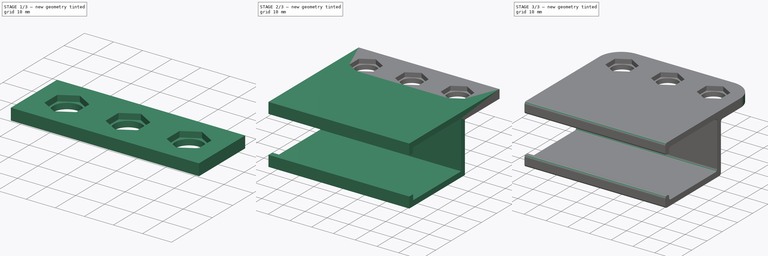
[diagram: build sequence overview — one tinted view per stage of 3, left to right]
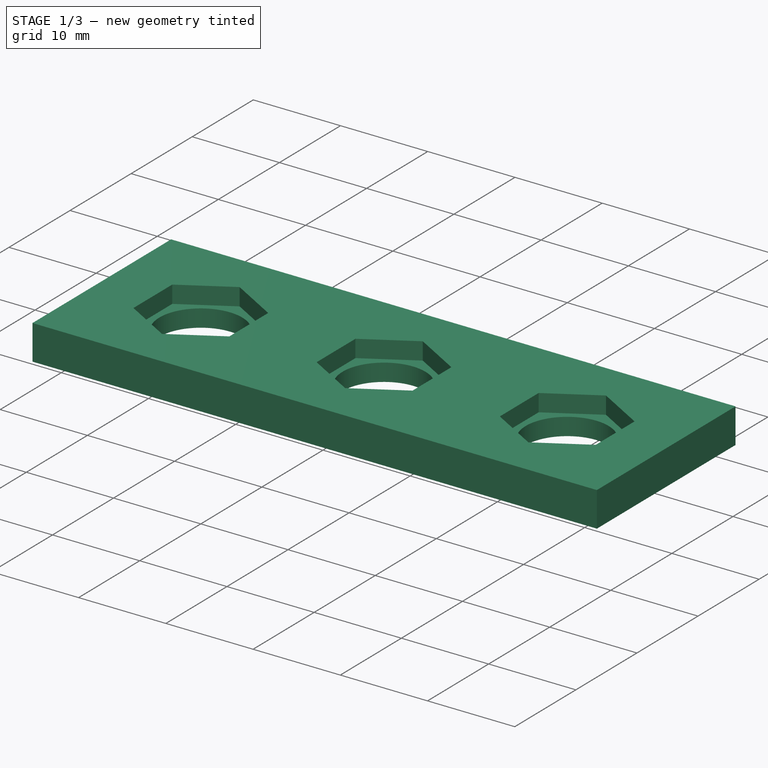
[diagram: stage 1 of 3 — iso view after this stage's code; geometry added in this stage tinted green]
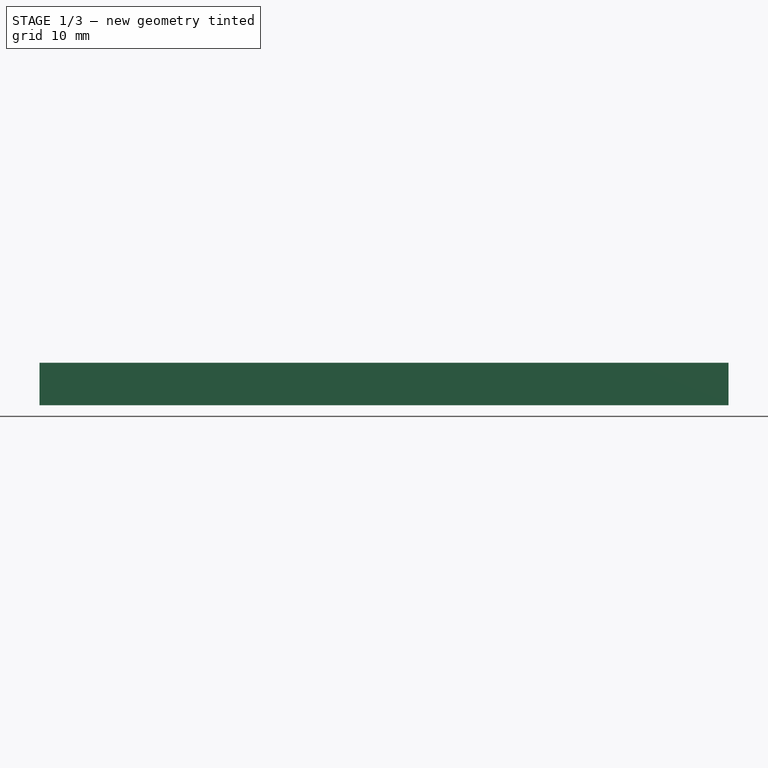
[diagram: stage 1 of 3 — front view after this stage's code; geometry added in this stage tinted green]
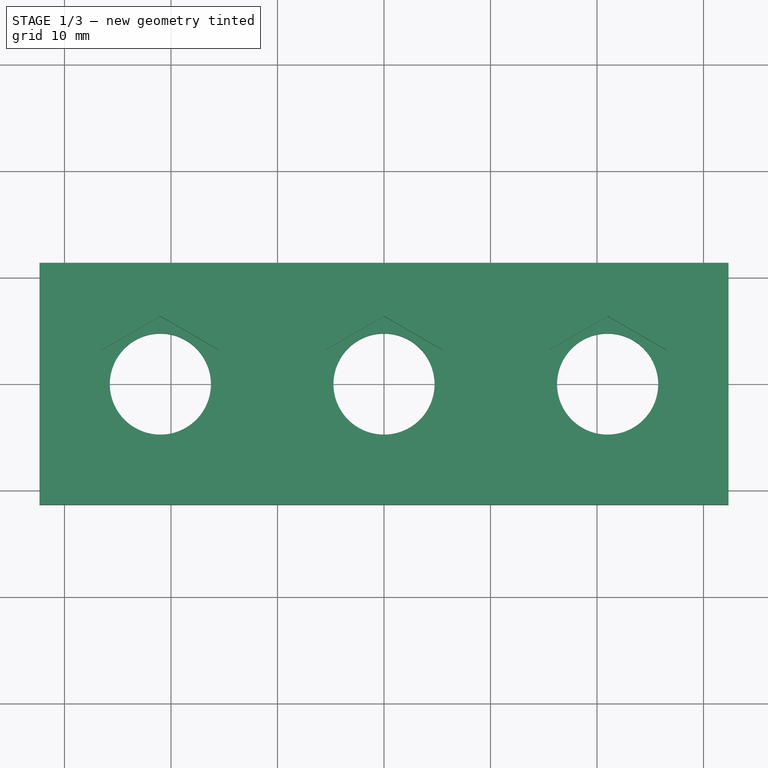
[diagram: stage 1 of 3 — top view after this stage's code; geometry added in this stage tinted green]
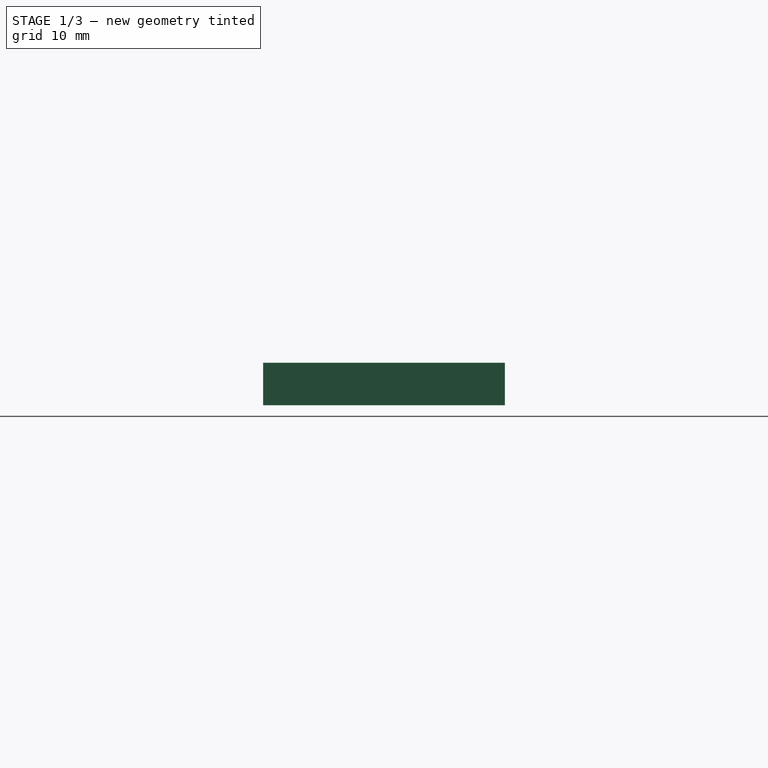
[diagram: stage 1 of 3 — right view after this stage's code; geometry added in this stage tinted green]
FCSTD DOCUMENT  (FreeCAD 1.0R39104 (Git))
Label: Composite Mount
License: All rights reserved
LicenseURL: http://en.wikipedia.org/wiki/All_rights_reserved
objects: Sketcher::SketchObject×3, PartDesign::Pad×3, PartDesign::Fillet×2, PartDesign::Body×1
note: 22 computed .brp shape members not serialized (recipe doc carries the construction recipe); baked Part::Feature solids carry a one-line shape summary decoded from their .brp

FEATURE [Sketcher::SketchObject] Sketch
  ArcFitTolerance = 1e-06
  AttachmentSupport = -> [XY_Plane]
  FullyConstrained = true
  MakeInternals = false
  MapMode = 5
  sketch-geometry (33):
    g0: LineSegment StartX=-32.3509 StartY=-11.3509 StartZ=0 EndX=32.3509 EndY=-11.3509 EndZ=0
    g1: LineSegment StartX=32.3509 StartY=-11.3509 StartZ=0 EndX=32.3509 EndY=11.3509 EndZ=0
    g2: LineSegment StartX=32.3509 StartY=11.3509 StartZ=0 EndX=-32.3509 EndY=11.3509 EndZ=0
    g3: LineSegment StartX=-32.3509 StartY=11.3509 StartZ=0 EndX=-32.3509 EndY=-11.3509 EndZ=0
    g4: GeomPoint [constr] X=0 Y=0 Z=0
    g5: LineSegment StartX=0 StartY=6.35085 StartZ=0 EndX=-5.5 EndY=3.17543 EndZ=0
    g6: LineSegment StartX=-5.5 StartY=3.17543 StartZ=0 EndX=-5.5 EndY=-3.17543 EndZ=0
    g7: LineSegment StartX=-5.5 StartY=-3.17543 StartZ=0 EndX=-9e-16 EndY=-6.35085 EndZ=0
    g8: LineSegment StartX=-9e-16 StartY=-6.35085 StartZ=0 EndX=5.5 EndY=-3.17543 EndZ=0
    g9: LineSegment StartX=5.5 StartY=-3.17543 StartZ=0 EndX=5.5 EndY=3.17543 EndZ=0
    g10: LineSegment StartX=5.5 StartY=3.17543 StartZ=0 EndX=0 EndY=6.35085 EndZ=0
    g11: Circle [constr] CenterX=0 CenterY=0 CenterZ=0 NormalX=0 NormalY=0 NormalZ=1 AngleXU=0 Radius=6.35085
    g12: LineSegment StartX=-21 StartY=6.35085 StartZ=0 EndX=-26.5 EndY=3.17543 EndZ=0
    g13: LineSegment StartX=-26.5 StartY=3.17543 StartZ=0 EndX=-26.5 EndY=-3.17543 EndZ=0
    g14: LineSegment StartX=-26.5 StartY=-3.17543 StartZ=0 EndX=-21 EndY=-6.35085 EndZ=0
    g15: LineSegment StartX=-21 StartY=-6.35085 StartZ=0 EndX=-15.5 EndY=-3.17543 EndZ=0
    g16: LineSegment StartX=-15.5 StartY=-3.17543 StartZ=0 EndX=-15.5 EndY=3.17543 EndZ=0
    g17: LineSegment StartX=-15.5 StartY=3.17543 StartZ=0 EndX=-21 EndY=6.35085 EndZ=0
    g18: Circle [constr] CenterX=-21 CenterY=0 CenterZ=0 NormalX=0 NormalY=0 NormalZ=1 AngleXU=0 Radius=6.35085
    g19: LineSegment StartX=21 StartY=6.35085 StartZ=0 EndX=15.5 EndY=3.17543 EndZ=0
    g20: LineSegment StartX=15.5 StartY=3.17543 StartZ=0 EndX=15.5 EndY=-3.17543 EndZ=0
    g21: LineSegment StartX=15.5 StartY=-3.17543 StartZ=0 EndX=21 EndY=-6.35085 EndZ=0
    g22: LineSegment StartX=21 StartY=-6.35085 StartZ=0 EndX=26.5 EndY=-3.17543 EndZ=0
    g23: LineSegment StartX=26.5 StartY=-3.17543 StartZ=0 EndX=26.5 EndY=3.17543 EndZ=0
    g24: LineSegment StartX=26.5 StartY=3.17543 StartZ=0 EndX=21 EndY=6.35085 EndZ=0
    g25: Circle [constr] CenterX=21 CenterY=0 CenterZ=0 NormalX=0 NormalY=0 NormalZ=1 AngleXU=0 Radius=6.35085
    g26: LineSegment [constr] StartX=-15.5 StartY=-3.17543 StartZ=0 EndX=-26.5 EndY=-3.17543 EndZ=0
    g27: LineSegment [constr] StartX=-5.5 StartY=-3.17543 StartZ=0 EndX=5.5 EndY=-3.17543 EndZ=0
    g28: LineSegment [constr] StartX=15.5 StartY=-3.17543 StartZ=0 EndX=26.5 EndY=-3.17543 EndZ=0
    g29: LineSegment [constr] StartX=-15.5 StartY=3.17543 StartZ=0 EndX=-5.5 EndY=3.17543 EndZ=0
    g30: LineSegment [constr] StartX=5.5 StartY=3.17543 StartZ=0 EndX=15.5 EndY=3.17543 EndZ=0
    g31: LineSegment [constr] StartX=27.3509 StartY=0 StartZ=0 EndX=32.3509 EndY=0 EndZ=0
    g32: LineSegment [constr] StartX=21 StartY=6.35085 StartZ=0 EndX=21 EndY=11.3509 EndZ=0
  constraints (80):
    c: Coincident(g0,g1)
    c: Coincident(g1,g2)
    c: Coincident(g2,g3)
    c: Coincident(g3,g0)
    c: Horizontal(g0)
    c: Horizontal(g2)
    c: Vertical(g1)
    c: Vertical(g3)
    c: Symmetric(g2,g0,g4)
    c: Coincident(g4,g-1)
    c: Coincident(g5,g6)
    c: Coincident(g6,g7)
    c: Coincident(g7,g8)
    c: Coincident(g8,g9)
    c: Coincident(g9,g10)
    c: Coincident(g10,g5)
    c: Equal(g5, g6-g10) x5
    c: PointOnObject(g5,g11)
    c: PointOnObject(g6,g11)
    c: PointOnObject(g7,g11)
    c: PointOnObject(g8,g11)
    c: PointOnObject(g9,g11)
    c: PointOnObject(g10,g11)
    c: Coincident(g11,g4)
    c: PointOnObject(g10,g-2)
    c: Coincident(g12,g13)
    c: Coincident(g13,g14)
    c: Coincident(g14,g15)
    c: Coincident(g15,g16)
    c: Coincident(g16,g17)
    c: Coincident(g17,g12)
    c: Equal(g12, g13-g17) x5
    c: PointOnObject(g12,g18)
    c: PointOnObject(g13,g18)
    c: PointOnObject(g14,g18)
    c: PointOnObject(g15,g18)
    c: PointOnObject(g16,g18)
    c: PointOnObject(g17,g18)
    c: PointOnObject(g18,g-1)
    c: Coincident(g19,g20)
    c: Coincident(g20,g21)
    c: Coincident(g21,g22)
    c: Coincident(g22,g23)
    c: Coincident(g23,g24)
    c: Coincident(g24,g19)
    c: Equal(g19, g20-g24) x5
    c: PointOnObject(g19,g25)
    c: PointOnObject(g20,g25)
    c: PointOnObject(g21,g25)
    c: PointOnObject(g22,g25)
    c: PointOnObject(g23,g25)
    c: PointOnObject(g24,g25)
    c: PointOnObject(g25,g-1)
    c: Coincident(g26,g15)
    c: Coincident(g26,g13)
    c: Horizontal(g26)
    c: Coincident(g27,g6)
    c: Coincident(g27,g8)
    c: Coincident(g28,g20)
    c: Coincident(g28,g22)
    c: Horizontal(g28)
    c: Coincident(g29,g16)
    c: Coincident(g29,g5)
    c: Coincident(g30,g9)
    c: Coincident(g30,g19)
    c: Horizontal(g30)
    c: Horizontal(g29)
    c: Distance(g29) = 10
    c: Equal(g29,g30)
    c: Distance(g26) = 11
    c: PointOnObject(g31,g25)
    c: PointOnObject(g31,g1)
    c: PointOnObject(g32,g25)
    c: PointOnObject(g32,g2)
    c: Vertical(g32)
    c: Horizontal(g31)
    c: Perpendicular(g25,g32)
    c: Perpendicular(g25,g31)
    c: Equal(g32,g31)
    c: Distance(g32) = 5
FEATURE [PartDesign::Pad] Pad
  Direction = (0,0,1)
  Length = 2
  Length2 = 10
  Profile = -> Sketch
  ReferenceAxis = -> Sketch [N_Axis]
  Refine = true
  Suppressed = false
  Type = 0
FEATURE [Sketcher::SketchObject] Sketch001
  ArcFitTolerance = 1e-06
  AttachmentSupport = -> [Pad]
  ExternalGeometry = -> [Pad]
  FullyConstrained = true
  MakeInternals = false
  MapMode = 5
  Placement = pos=(0,0,0) rot=(1,0,0;3.14159rad)
  sketch-geometry (7):
    g0: LineSegment StartX=-32.3509 StartY=11.3509 StartZ=0 EndX=-32.3509 EndY=-11.3509 EndZ=0
    g1: LineSegment StartX=-32.3509 StartY=-11.3509 StartZ=0 EndX=32.3509 EndY=-11.3509 EndZ=0
    g2: LineSegment StartX=32.3509 StartY=-11.3509 StartZ=0 EndX=32.3509 EndY=11.3509 EndZ=0
    g3: LineSegment StartX=32.3509 StartY=11.3509 StartZ=0 EndX=-32.3509 EndY=11.3509 EndZ=0
    g4: Circle CenterX=0 CenterY=0 CenterZ=0 NormalX=0 NormalY=0 NormalZ=1 AngleXU=0 Radius=4.75
    g5: Circle CenterX=21 CenterY=8e-16 CenterZ=0 NormalX=0 NormalY=0 NormalZ=1 AngleXU=0 Radius=4.75
    g6: Circle CenterX=-21 CenterY=-8e-15 CenterZ=0 NormalX=0 NormalY=0 NormalZ=1 AngleXU=0 Radius=4.75
  constraints (16):
    c: Coincident(g0,g1)
    c: Coincident(g1,g2)
    c: Coincident(g2,g3)
    c: Coincident(g3,g0)
    c: Vertical(g0)
    c: Vertical(g2)
    c: Horizontal(g1)
    c: Horizontal(g3)
    c: Coincident(g0,g-8)
    c: Coincident(g1,g-7)
    c: Coincident(g4,g-1)
    c: Symmetric(g-3,g-4,g6)
    c: Symmetric(g-5,g-6,g5)
    c: Equal(g4,g5)
    c: Equal(g5,g6)
    c: Diameter(g6) = 9.5
FEATURE [PartDesign::Pad] Pad001
  BaseFeature = -> Pad
  Direction = (0,0,-1)
  Length = 2
  Length2 = 10
  Profile = -> Sketch001
  ReferenceAxis = -> Sketch001 [N_Axis]
  Refine = true
  Suppressed = false
  Type = 0
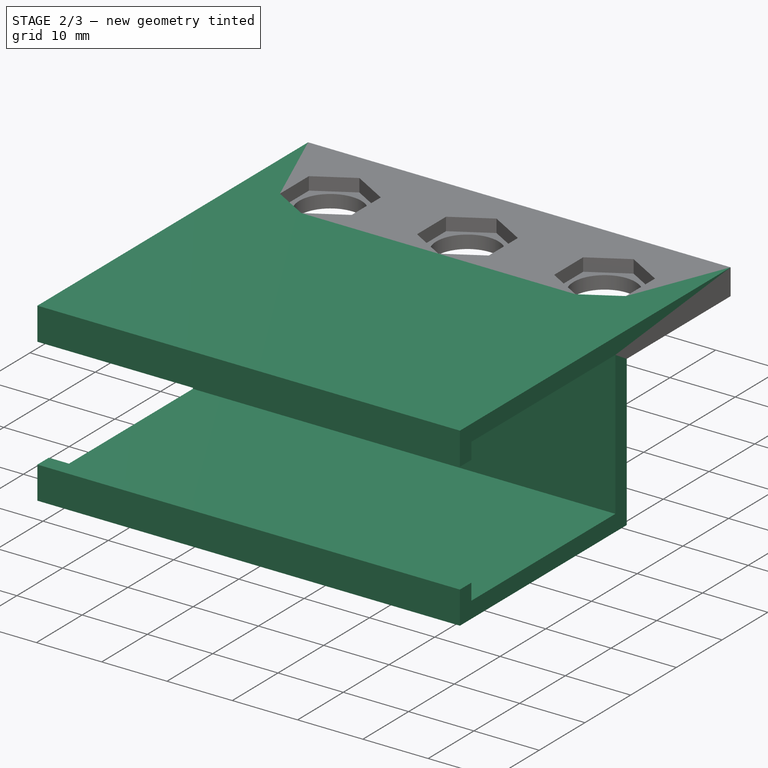
[diagram: stage 2 of 3 — iso view after this stage's code; geometry added in this stage tinted green]
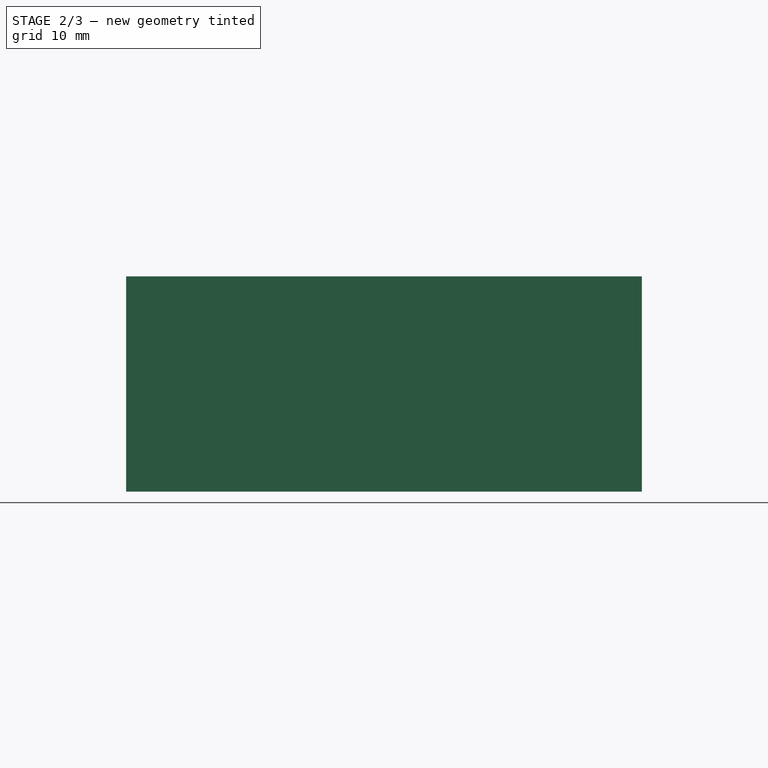
[diagram: stage 2 of 3 — front view after this stage's code; geometry added in this stage tinted green]
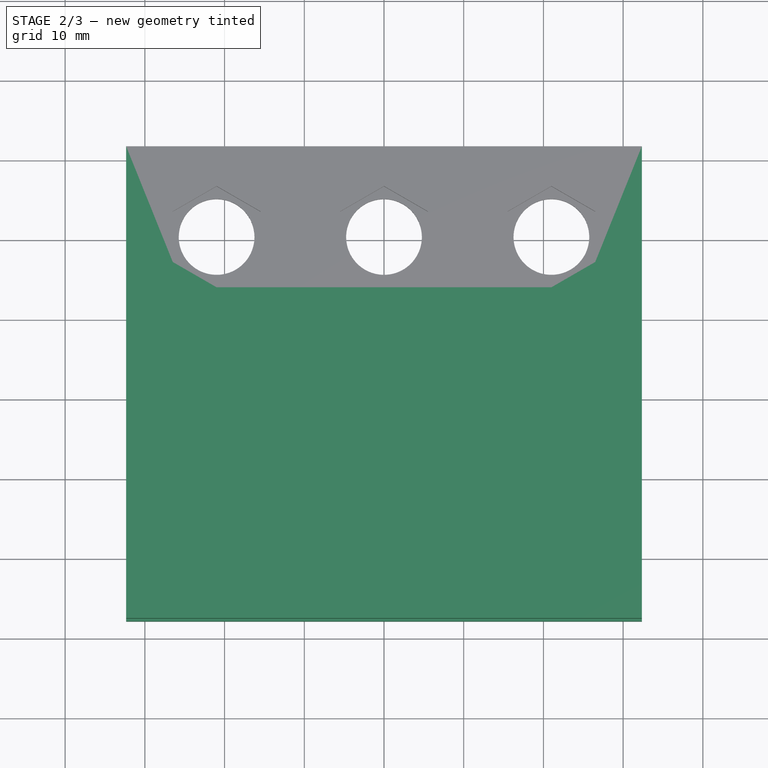
[diagram: stage 2 of 3 — top view after this stage's code; geometry added in this stage tinted green]
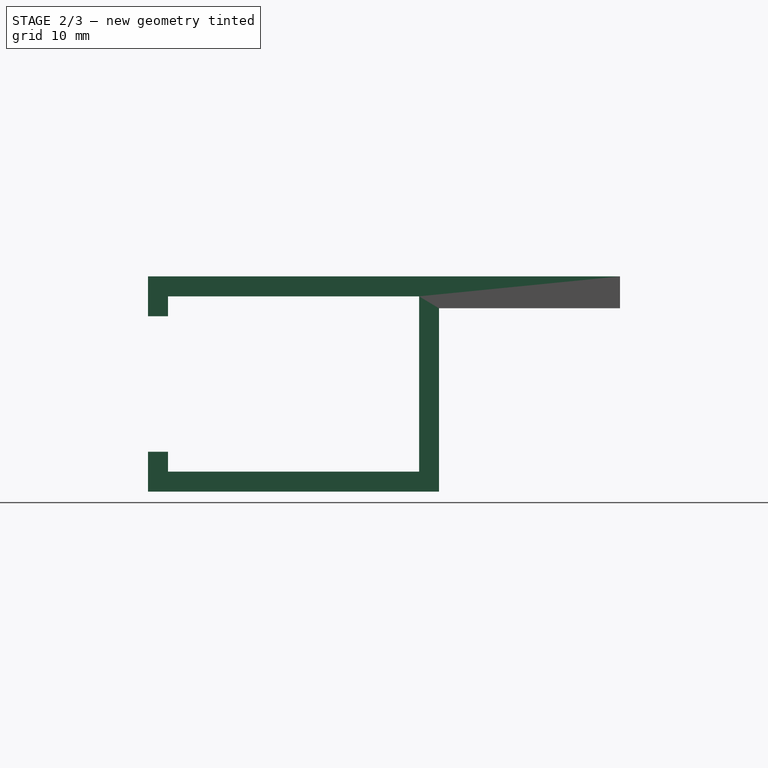
[diagram: stage 2 of 3 — right view after this stage's code; geometry added in this stage tinted green]
FEATURE [Sketcher::SketchObject] Sketch002
  ArcFitTolerance = 1e-06
  AttachmentSupport = -> [Pad001]
  ExternalGeometry = -> [Pad001]
  FullyConstrained = true
  MakeInternals = false
  MapMode = 5
  Placement = pos=(-32.3509,0,0) rot=(0.57735,-0.57735,-0.57735;2.0944rad)
  sketch-geometry (17):
    g0: LineSegment StartX=11.3509 StartY=2 StartZ=0 EndX=11.3509 EndY=-25 EndZ=0
    g1: LineSegment StartX=11.3509 StartY=-25 StartZ=0 EndX=47.8509 EndY=-25 EndZ=0
    g2: LineSegment [constr] StartX=47.8509 StartY=-25 StartZ=0 EndX=47.8509 EndY=2 EndZ=0
    g3: LineSegment StartX=47.8509 StartY=2 StartZ=0 EndX=11.3509 EndY=2 EndZ=0
    g4: LineSegment StartX=47.8509 StartY=2 StartZ=0 EndX=47.8509 EndY=-3 EndZ=0
    g5: LineSegment StartX=47.8509 StartY=-3 StartZ=0 EndX=45.3509 EndY=-3 EndZ=0
    g6: LineSegment StartX=45.3509 StartY=-3 StartZ=0 EndX=45.3509 EndY=-0.5 EndZ=0
    g7: LineSegment StartX=45.3509 StartY=-0.5 StartZ=0 EndX=13.8509 EndY=-0.5 EndZ=0
    g8: LineSegment StartX=13.8509 StartY=-0.5 StartZ=0 EndX=13.8509 EndY=-22.5 EndZ=0
    g9: LineSegment StartX=13.8509 StartY=-22.5 StartZ=0 EndX=45.3509 EndY=-22.5 EndZ=0
    g10: LineSegment StartX=45.3509 StartY=-22.5 StartZ=0 EndX=45.3509 EndY=-20 EndZ=0
    g11: LineSegment StartX=45.3509 StartY=-20 StartZ=0 EndX=47.8509 EndY=-20 EndZ=0
    g12: LineSegment StartX=47.8509 StartY=-20 StartZ=0 EndX=47.8509 EndY=-25 EndZ=0
    g13: LineSegment [constr] StartX=45.3509 StartY=-3 StartZ=0 EndX=45.3509 EndY=-20 EndZ=0
    g14: LineSegment [constr] StartX=45.3509 StartY=-22.5 StartZ=0 EndX=45.3509 EndY=-25 EndZ=0
    g15: LineSegment [constr] StartX=45.3509 StartY=-0.5 StartZ=0 EndX=45.3509 EndY=2 EndZ=0
    g16: LineSegment [constr] StartX=13.8509 StartY=-22.5 StartZ=0 EndX=11.3509 EndY=-22.5 EndZ=0
  constraints (48):
    c: Coincident(g0,g1)
    c: Coincident(g1,g2)
    c: Coincident(g2,g3)
    c: Coincident(g3,g0)
    c: Vertical(g0)
    c: Vertical(g2)
    c: Horizontal(g1)
    c: Horizontal(g3)
    c: Coincident(g0,g-3)
    c: Coincident(g2,g4)
    c: PointOnObject(g4,g2)
    c: Coincident(g4,g5)
    c: Horizontal(g5)
    c: Coincident(g5,g6)
    c: Vertical(g6)
    c: Coincident(g6,g7)
    c: Horizontal(g7)
    c: Coincident(g7,g8)
    c: Vertical(g8)
    c: Coincident(g8,g9)
    c: Horizontal(g9)
    c: Coincident(g9,g10)
    c: Vertical(g10)
    c: Coincident(g10,g11)
    c: PointOnObject(g11,g2)
    c: Horizontal(g11)
    c: Coincident(g11,g12)
    c: Coincident(g12,g1)
    c: Equal(g4,g12)
    c: Coincident(g13,g5)
    c: Coincident(g13,g10)
    c: Vertical(g13)
    c: Coincident(g14,g9)
    c: PointOnObject(g14,g1)
    c: Vertical(g14)
    c: Coincident(g15,g6)
    c: PointOnObject(g15,g3)
    c: Vertical(g15)
    c: Coincident(g16,g8)
    c: PointOnObject(g16,g0)
    c: Horizontal(g16)
    c: Equal(g15,g16)
    c: Equal(g14,g16)
    c: Equal(g11,g14)
    c: Distance(g15) = 2.5
    c: Equal(g15,g6)
    c: Distance(g9) = 31.5
    c: Distance(g8) = 22
FEATURE [PartDesign::Pad] Pad002
  BaseFeature = -> Pad001
  Direction = (-1,0,0)
  Length = 10
  Length2 = 10
  Profile = -> Sketch002
  ReferenceAxis = -> Sketch002 [N_Axis]
  Refine = true
  Suppressed = false
  Type = 3
  UpToFace = -> Pad001 [Face29]
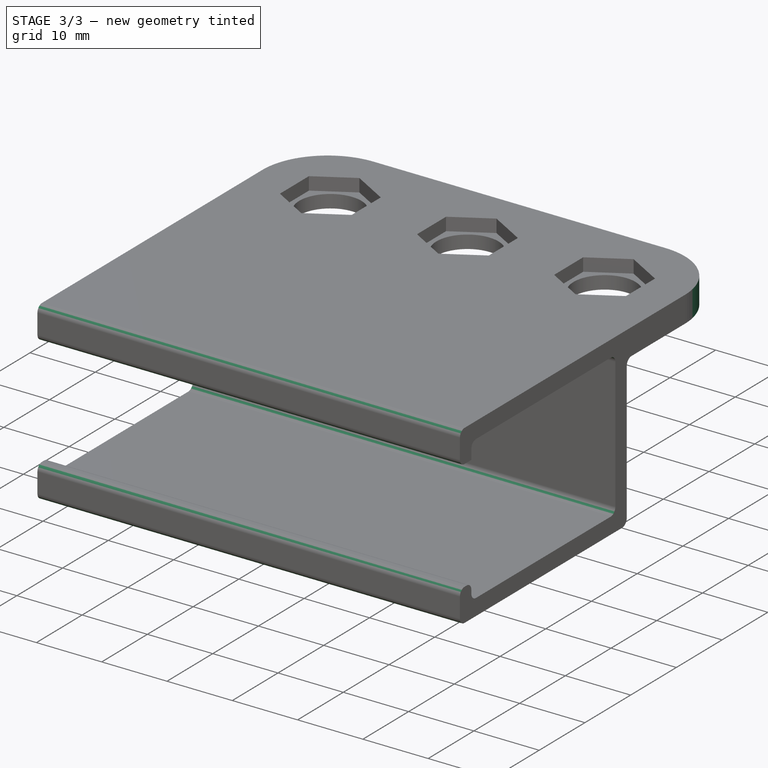
[diagram: stage 3 of 3 — iso view after this stage's code; geometry added in this stage tinted green]
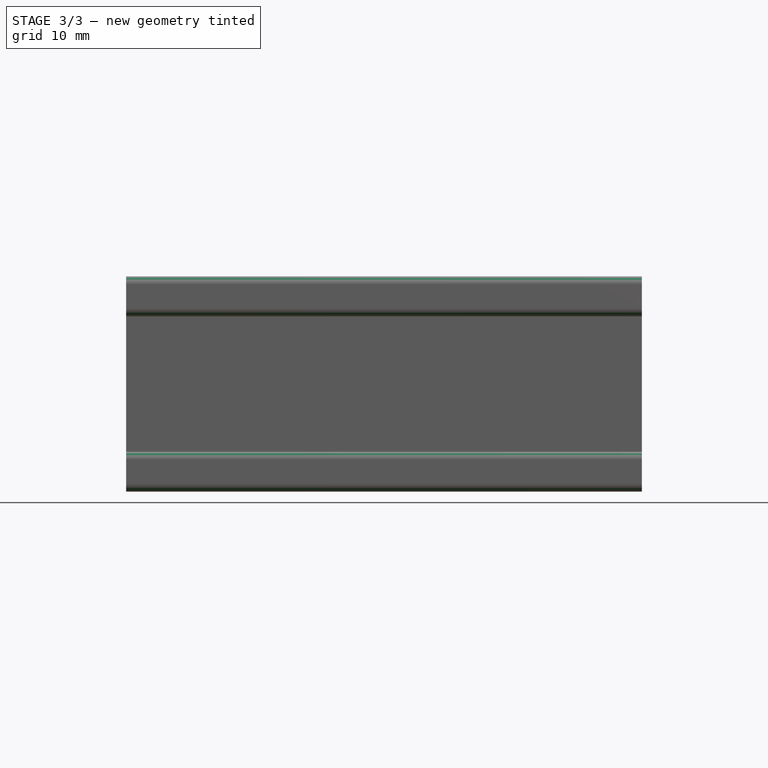
[diagram: stage 3 of 3 — front view after this stage's code; geometry added in this stage tinted green]
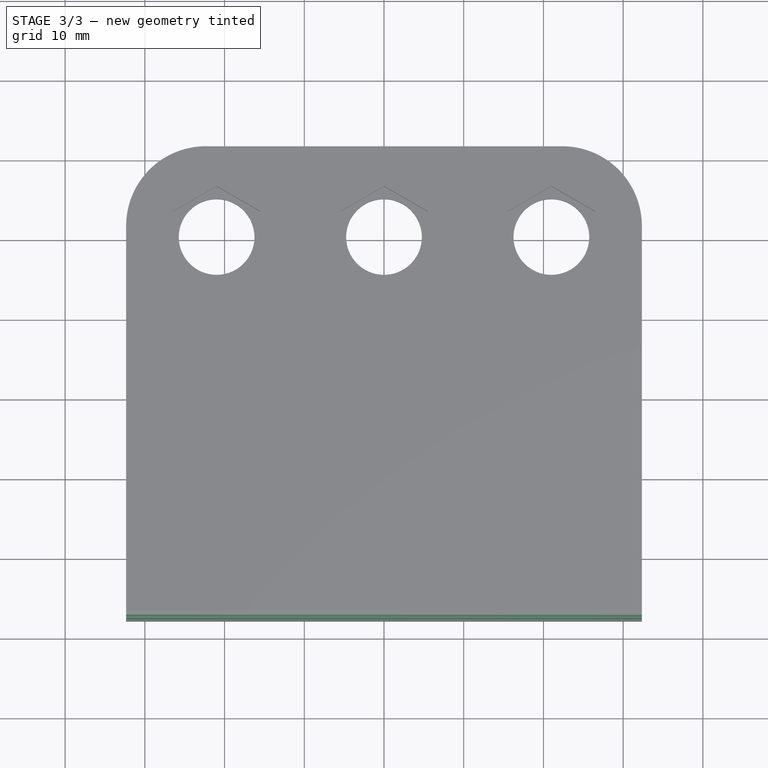
[diagram: stage 3 of 3 — top view after this stage's code; geometry added in this stage tinted green]
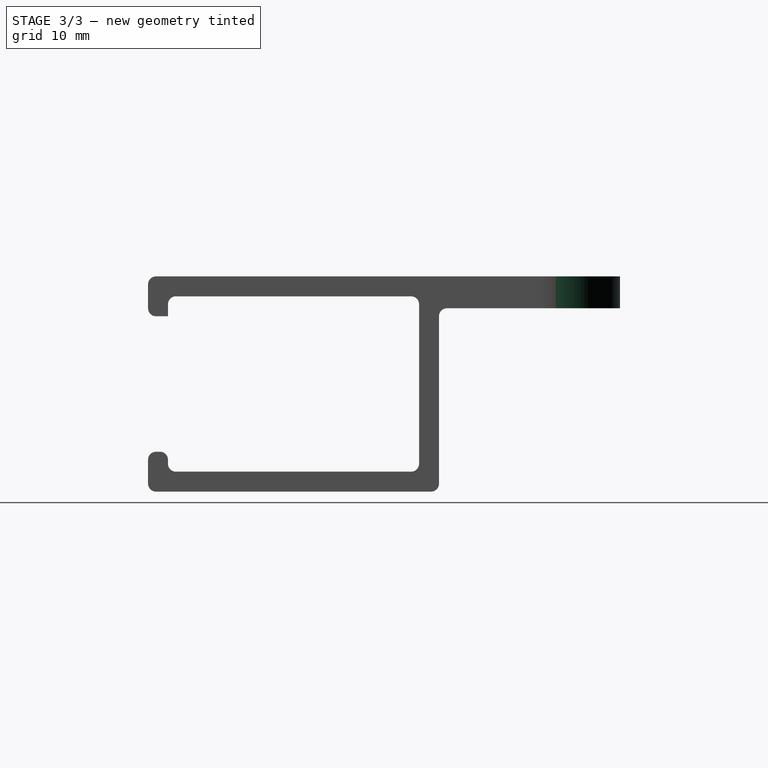
[diagram: stage 3 of 3 — right view after this stage's code; geometry added in this stage tinted green]
FEATURE [PartDesign::Fillet] Fillet
  Base = -> Pad002 [Edge64,Edge66]
  BaseFeature = -> Pad002
  Radius = 10
  Refine = true
  SupportTransform = false
  Suppressed = false
  UseAllEdges = false
FEATURE [PartDesign::Fillet] Fillet001
  Base = -> Fillet [Edge19,Edge67,Edge107,Edge105,Edge104,Edge111,Edge110,Edge108,Edge109,Edge49,Edge7]
  BaseFeature = -> Fillet
  Radius = 1
  Refine = true
  SupportTransform = false
  Suppressed = false
  UseAllEdges = false
FEATURE [PartDesign::Body] Body  label="Composite"
  AllowCompound = false
  Group = -> [Sketch,Pad,Sketch001,Pad001,Sketch002,Pad002,Fillet,Fillet001]
  Origin = -> Origin
  Tip = -> Fillet001
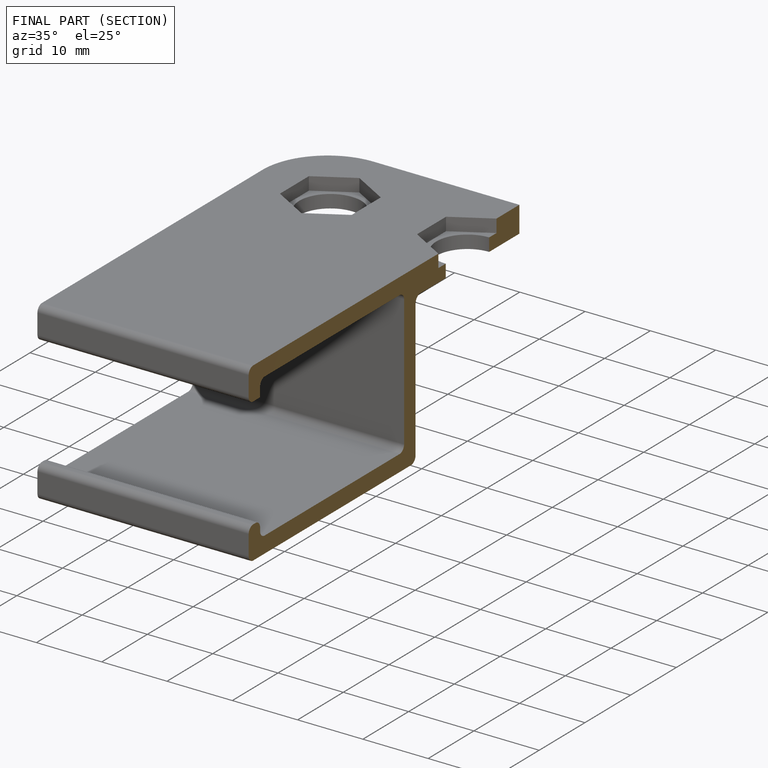
[diagram: finished part — half-section view (interior)]
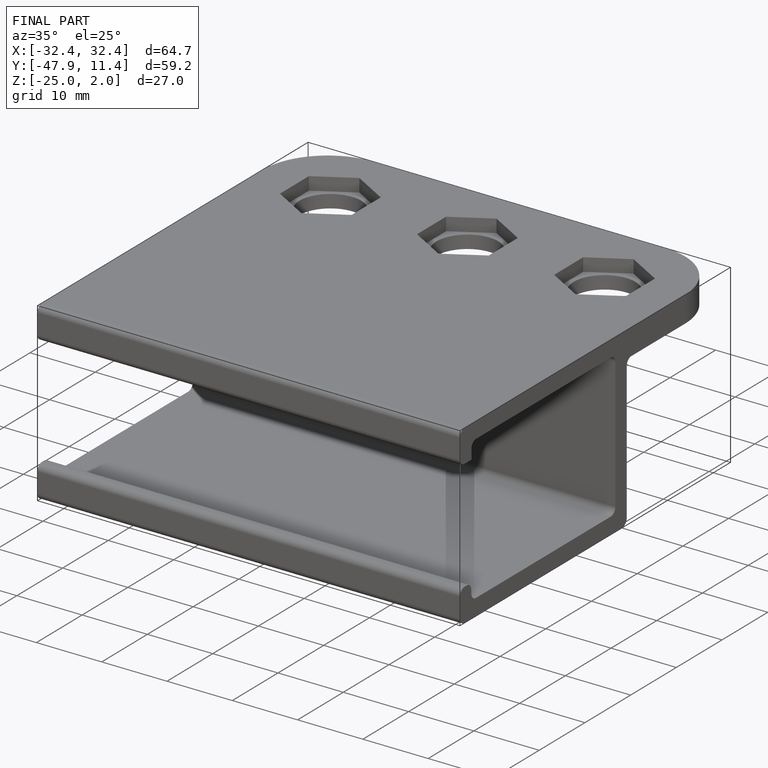
[diagram: finished part — iso view with bounding-box wireframe]
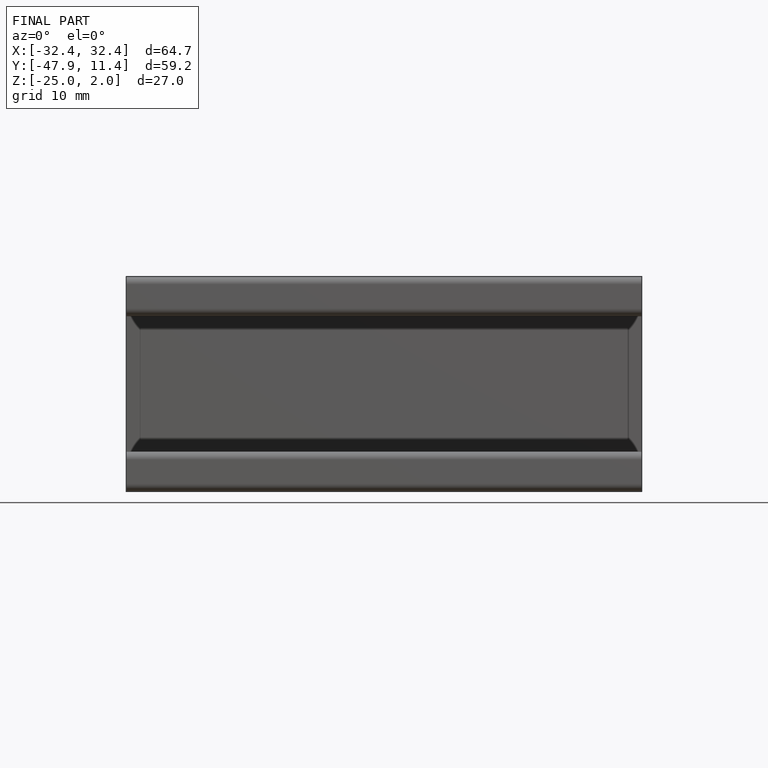
[diagram: finished part — front view with bounding-box wireframe]
